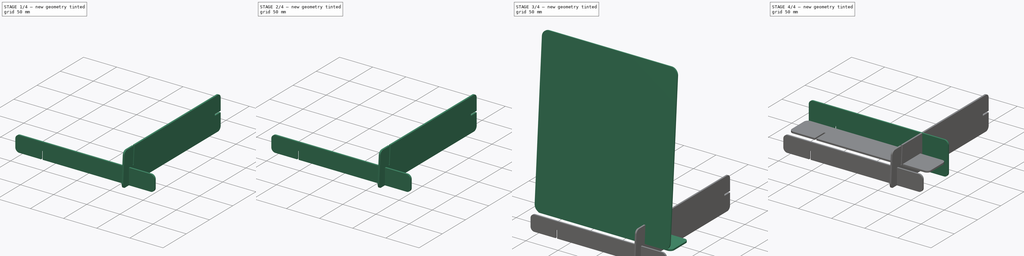
[diagram: build sequence overview — one tinted view per stage of 4, left to right]
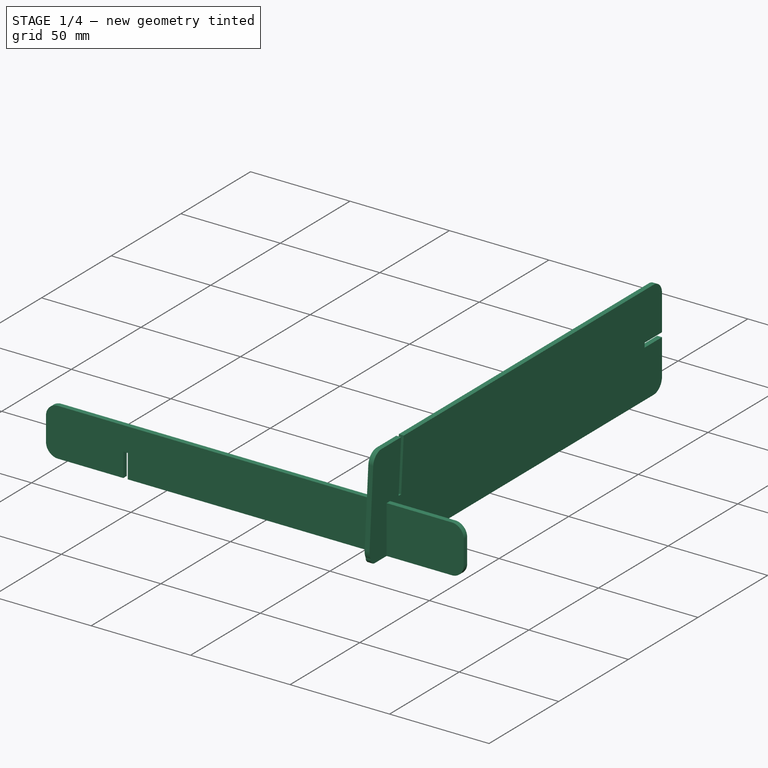
[diagram: stage 1 of 4 — iso view after this stage's code; geometry added in this stage tinted green]
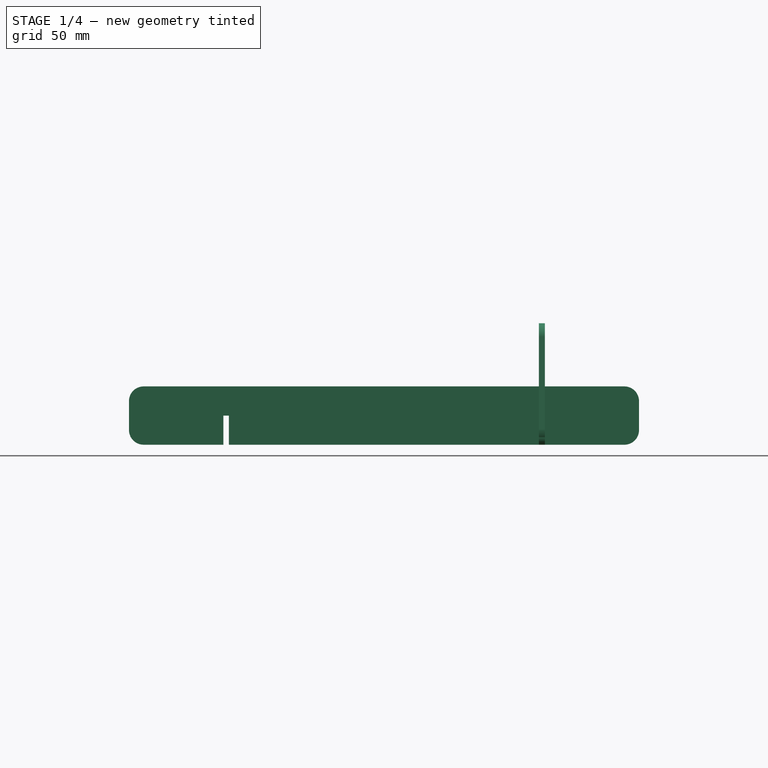
[diagram: stage 1 of 4 — front view after this stage's code; geometry added in this stage tinted green]
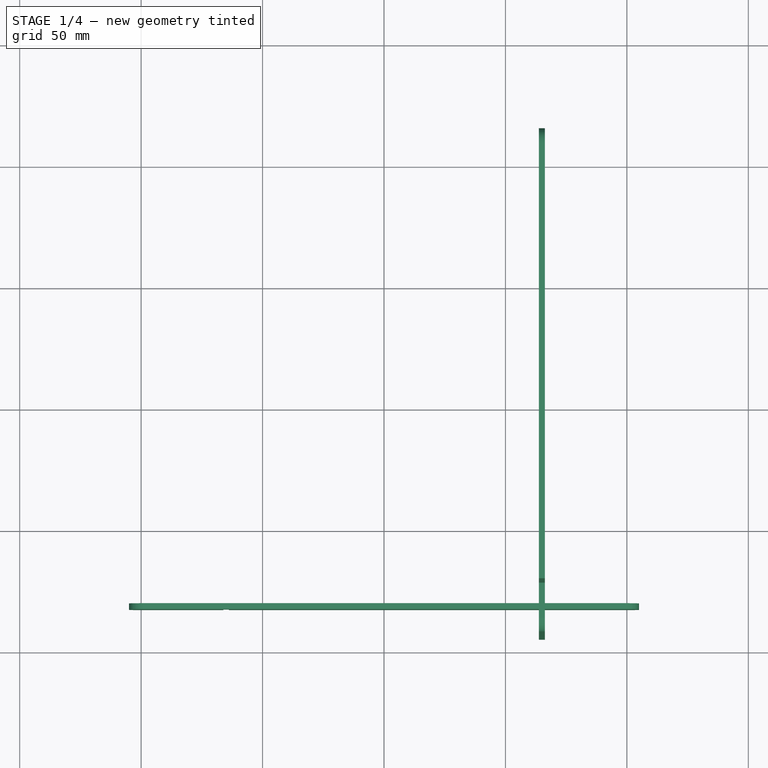
[diagram: stage 1 of 4 — top view after this stage's code; geometry added in this stage tinted green]
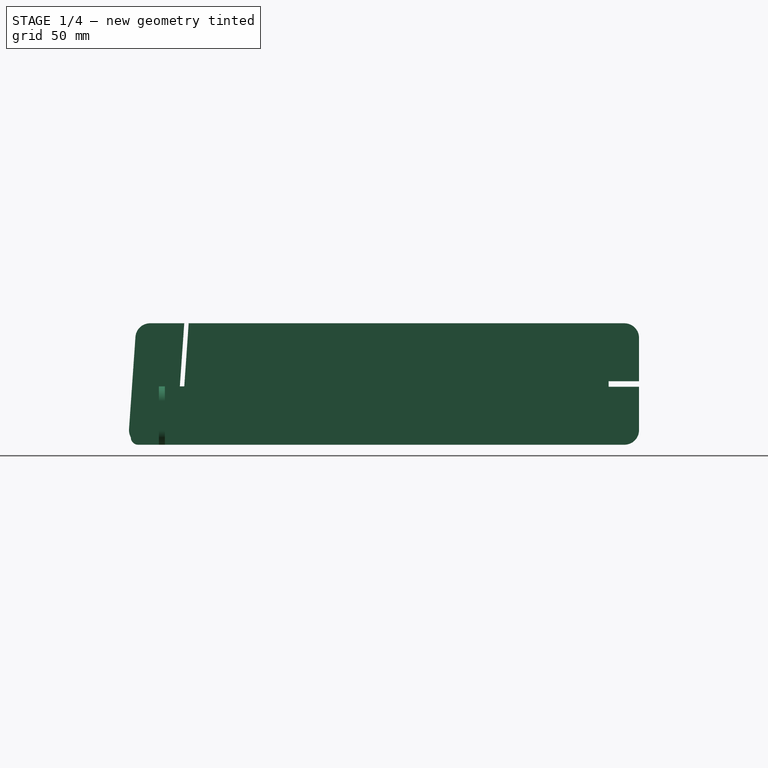
[diagram: stage 1 of 4 — right view after this stage's code; geometry added in this stage tinted green]
FCSTD DOCUMENT  (FreeCAD 1.0R39319 (Git))
Label: clock_face_v1
License: CERN Open Hardware Licence permissive
LicenseURL: https://cern-ohl.web.cern.ch/
objects: PartDesign::Body×14, Sketcher::SketchObject×11, PartDesign::Pad×9, PartDesign::SubShapeBinder×7, PartDesign::FeatureBase×5, PartDesign::Plane×1, App::VarSet×1
note: 81 computed .brp shape members not serialized (recipe doc carries the construction recipe); baked Part::Feature solids carry a one-line shape summary decoded from their .brp

FEATURE [PartDesign::Body] Body009
  AllowCompound = false
  Group = -> [Binder005,Binder006,Sketch009,Pad006]
  Origin = -> Origin009
  Tip = -> Pad006
FEATURE [App::VarSet] VarSet
  cardboard_thickness = 2.1
  laser_kerf = 0.2
  veneer_thickness = 2.45
FEATURE [Sketcher::SketchObject] Sketch010
  ArcFitTolerance = 1e-06
  AttachmentOffset = pos=(0,0,65) rot=(0,0,1;0rad)
  AttachmentSupport = -> [YZ_Plane010]
  FullyConstrained = true
  MakeInternals = false
  MapMode = 5
  Placement = pos=(65,0,0) rot=(0.57735,0.57735,0.57735;2.0944rad)
  expr: Constraints[11] = VarSet.veneer_thickness - VarSet.laser_kerf
  expr: Constraints[1] = VarSet.cardboard_thickness
  sketch-geometry (22):
    g0: LineSegment StartX=-19.9022 StartY=30 StartZ=0 EndX=-22 EndY=0 EndZ=0
    g1: LineSegment StartX=-22 StartY=0 StartZ=0 EndX=-24.1051 EndY=0 EndZ=0
    g2: LineSegment StartX=-24.1051 StartY=0 StartZ=0 EndX=-22.0073 EndY=30 EndZ=0
    g3: LineSegment StartX=-32.25 StartY=-7.5 StartZ=0 EndX=-32.25 EndY=-20 EndZ=0
    g4: LineSegment StartX=-30 StartY=-20 StartZ=0 EndX=-30 EndY=-7.5 EndZ=0
    g5: LineSegment StartX=-30 StartY=-7.5 StartZ=0 EndX=-32.25 EndY=-7.5 EndZ=0
    g6: LineSegment StartX=152.75 StartY=6.125 StartZ=0 EndX=152.75 EndY=3.875 EndZ=0
    g7: LineSegment StartX=152.75 StartY=3.875 StartZ=0 EndX=165.25 EndY=3.875 EndZ=0
    g8: LineSegment StartX=165.25 StartY=6.125 StartZ=0 EndX=152.75 EndY=6.125 EndZ=0
    g9: LineSegment StartX=-42.0928 StartY=24.4185 StartZ=0 EndX=-44.75 EndY=-13.5815 EndZ=0
    g10: LineSegment StartX=-38.7646 StartY=-20 StartZ=0 EndX=-32.25 EndY=-20 EndZ=0
    g11: LineSegment StartX=165.25 StartY=-14 StartZ=0 EndX=165.25 EndY=3.875 EndZ=0
    g12: LineSegment StartX=159.25 StartY=30 StartZ=0 EndX=-19.9022 EndY=30 EndZ=0
    g13: ArcOfCircle CenterX=-36.1074 CenterY=24 CenterZ=0 NormalX=0 NormalY=0 NormalZ=1 AngleXU=0 Radius=6 StartAngle=1.5708 EndAngle=3.07178
    g14: ArcOfCircle CenterX=-38.7646 CenterY=-14 CenterZ=0 NormalX=0 NormalY=0 NormalZ=1 AngleXU=0 Radius=6 StartAngle=3.07178 EndAngle=4.71239
    g15: ArcOfCircle CenterX=159.25 CenterY=-14 CenterZ=0 NormalX=0 NormalY=0 NormalZ=1 AngleXU=0 Radius=6 StartAngle=4.71239 EndAngle=6.28319
    g16: ArcOfCircle CenterX=159.25 CenterY=24 CenterZ=0 NormalX=0 NormalY=0 NormalZ=1 AngleXU=0 Radius=6 StartAngle=0 EndAngle=1.5708
    g17: GeomPoint [constr] X=-41.7025 Y=30 Z=0
    g18: GeomPoint [constr] X=165.25 Y=-20 Z=0
    g19: LineSegment StartX=-22.0073 StartY=30 StartZ=0 EndX=-36.1074 EndY=30 EndZ=0
    g20: LineSegment StartX=-30 StartY=-20 StartZ=0 EndX=159.25 EndY=-20 EndZ=0
    g21: LineSegment StartX=165.25 StartY=6.125 StartZ=0 EndX=165.25 EndY=24 EndZ=0
  constraints (63):
    c: Parallel(g2,g0)
    c: Distance(g0,g2) = 2.1
    c: Coincident(g1,g2)
    c: Equal(g2,g0)
    c: Horizontal(g1)
    c: Angle(g-1,g0) = 1.50098
    c: Coincident(g4,g5)
    c: Coincident(g5,g3)
    c: Vertical(g3)
    c: Vertical(g4)
    c: Horizontal(g5)
    c: Distance(g5,g5) = 2.25
    c: DistanceY(g3,g3) = 12.5
    c: Equal(g3,g4)
    c: Coincident(g6,g7)
    c: Coincident(g8,g6)
    c: Vertical(g6)
    c: Horizontal(g7)
    c: Horizontal(g8)
    c: Equal(g6,g5)
    c: DistanceX(g8,g8) = 12.5
    c: Equal(g8,g7)
    c: Coincident(g0,g1)
    c: Distance(g0,g-2) = 22
    c: Distance(g4,g-2) = 30
    c: Tangent(g9,g13) = -1.5708
    c: Tangent(g9,g14) = -1.5708
    c: Tangent(g10,g14) = -1.5708
    c: Tangent(g11,g15) = -1.5708
    c: Tangent(g12,g16) = -1.5708
    c: Vertical(g11)
    c: Horizontal(g10)
    c: Horizontal(g12)
    c: Equal(g13,g14)
    c: Equal(g14,g15)
    c: Equal(g15,g16)
    c: PointOnObject(g17,g9)
    c: PointOnObject(g17,g19)
    c: PointOnObject(g18,g20)
    c: PointOnObject(g18,g11)
    c: Radius(g14) = 6
    c: Distance(g19,g-1) = 30
    c: PointOnObject(g2,g19)
    c: PointOnObject(g19,g2)
    c: Horizontal(g19)
    c: Tangent(g13,g19) = -1.5708
    c: PointOnObject(g1,g-1)
    c: PointOnObject(g4,g20)
    c: PointOnObject(g20,g4)
    c: Tangent(g20,g15) = -1.5708
    c: Horizontal(g20)
    c: Coincident(g3,g10)
    c: DistanceX(g9,g3) = 12.5
    c: Parallel(g9,g2)
    c: PointOnObject(g8,g21)
    c: PointOnObject(g21,g8)
    c: Equal(g21,g11)
    c: Tangent(g21,g16) = -1.5708
    c: Vertical(g21)
    c: Coincident(g11,g7)
    c: Coincident(g12,g0)
    c: DistanceX(g9,g11) = 210
    c: DistanceY(g10,g13) = 50
FEATURE [PartDesign::Pad] Pad007
  Direction = (1,0,0)
  Length = 2.45
  Length2 = 10
  Midplane = true
  Placement = pos=(0,0,0) rot=(1,1,1;2.0944rad)
  Profile = -> Sketch010
  ReferenceAxis = -> Sketch010 [N_Axis]
  Refine = true
  Suppressed = false
  Type = 0
  expr: Length = VarSet.veneer_thickness
FEATURE [PartDesign::Body] Body011
  AllowCompound = false
  Group = -> [Clone003]
  Origin = -> Origin011
  Placement = pos=(-130,0,0) rot=(0,0,1;0rad)
  Tip = -> Clone003
FEATURE [Sketcher::SketchObject] Sketch011
  ArcFitTolerance = 1e-06
  AttachmentOffset = pos=(0,0,65) rot=(0,0,1;0rad)
  AttachmentSupport = -> [YZ_Plane012]
  FullyConstrained = true
  MakeInternals = false
  MapMode = 5
  Placement = pos=(65,0,0) rot=(0.57735,0.57735,0.57735;2.0944rad)
  expr: Constraints[10] = VarSet.cardboard_thickness
  expr: Constraints[29] = VarSet.veneer_thickness - VarSet.laser_kerf
  sketch-geometry (20):
    g0: LineSegment StartX=12 StartY=30 StartZ=0 EndX=-20.1819 EndY=30 EndZ=0
    g1: LineSegment StartX=-20.1819 StartY=30 StartZ=0 EndX=-22 EndY=4 EndZ=0
    g2: LineSegment StartX=-22 StartY=4 StartZ=0 EndX=-24.1051 EndY=4 EndZ=0
    g3: LineSegment StartX=-24.1051 StartY=4 StartZ=0 EndX=-22.287 EndY=30 EndZ=0
    g4: LineSegment StartX=-22.287 StartY=30 StartZ=0 EndX=-35.133 EndY=30 EndZ=0
    g5: ArcOfCircle CenterX=-35.133 CenterY=24 CenterZ=0 NormalX=0 NormalY=0 NormalZ=1 AngleXU=0 Radius=6 StartAngle=1.5708 EndAngle=3.07178
    g6: LineSegment StartX=-44 StartY=-16.7907 StartZ=0 EndX=-41.1184 EndY=24.4185 EndZ=0
    g7: ArcOfCircle CenterX=-41.0073 CenterY=-17 CenterZ=0 NormalX=0 NormalY=0 NormalZ=1 AngleXU=0 Radius=3 StartAngle=3.07178 EndAngle=4.71239
    g8: LineSegment StartX=-41.0073 StartY=-20 StartZ=0 EndX=-32.25 EndY=-20 EndZ=0
    g9: ArcOfCircle CenterX=15 CenterY=-17 CenterZ=0 NormalX=0 NormalY=0 NormalZ=1 AngleXU=0 Radius=3 StartAngle=4.71239 EndAngle=6.28319
    g10: LineSegment StartX=18 StartY=24 StartZ=0 EndX=18 EndY=4 EndZ=0
    g11: ArcOfCircle CenterX=12 CenterY=24 CenterZ=0 NormalX=0 NormalY=0 NormalZ=1 AngleXU=0 Radius=6 StartAngle=0 EndAngle=1.5708
    g12: LineSegment StartX=-32.25 StartY=-8 StartZ=0 EndX=-32.25 EndY=-20 EndZ=0
    g13: LineSegment StartX=-30 StartY=-20 StartZ=0 EndX=-30 EndY=-8 EndZ=0
    g14: LineSegment StartX=-30 StartY=-8 StartZ=0 EndX=-32.25 EndY=-8 EndZ=0
    g15: LineSegment StartX=-30 StartY=-20 StartZ=0 EndX=15 EndY=-20 EndZ=0
    g16: LineSegment StartX=4.9987e-12 StartY=4 StartZ=0 EndX=4.9987e-12 EndY=1.75 EndZ=0
    g17: LineSegment StartX=4.9987e-12 StartY=1.75 StartZ=0 EndX=18 EndY=1.75 EndZ=0
    g18: LineSegment StartX=18 StartY=4 StartZ=0 EndX=4.9987e-12 EndY=4 EndZ=0
    g19: LineSegment StartX=18 StartY=1.75 StartZ=0 EndX=18 EndY=-17 EndZ=0
  constraints (58):
    c: Horizontal(g8)
    c: Vertical(g10)
    c: Horizontal(g0)
    c: Horizontal(g4)
    c: Equal(g7,g9)
    c: Equal(g5,g11)
    c: Radius(g5) = 6
    c: Radius(g7) = 3
    c: DistanceY(g15,g11) = 50
    c: Parallel(g3,g1)
    c: Distance(g1,g3) = 2.1
    c: Coincident(g0,g1)
    c: Coincident(g3,g4)
    c: Coincident(g2,g3)
    c: Tangent(g10,g11) = 1.5708
    c: Tangent(g4,g5) = -1.5708
    c: Tangent(g5,g6) = 1.5708
    c: Tangent(g7,g8) = -1.5708
    c: Equal(g3,g1)
    c: Horizontal(g2)
    c: Angle(g-1,g1) = 1.50098
    c: Parallel(g6,g3)
    c: Tangent(g6,g7) = 1.5708
    c: Coincident(g13,g14)
    c: Coincident(g14,g12)
    c: Vertical(g12)
    c: Vertical(g13)
    c: Horizontal(g14)
    c: PointOnObject(g13,g15)
    c: Distance(g14,g14) = 2.25
    c: DistanceY(g12,g12) = 12
    c: Coincident(g8,g12)
    c: PointOnObject(g15,g13)
    c: Equal(g12,g13)
    c: Horizontal(g15)
    c: Tangent(g15,g9) = -1.5708
    c: Tangent(g0,g11) = -1.5708
    c: Distance(g9,g-2) = 18
    c: Coincident(g16,g17)
    c: Coincident(g18,g16)
    c: Vertical(g16)
    c: Horizontal(g17)
    c: Horizontal(g18)
    c: PointOnObject(g17,g19)
    c: Equal(g16,g14)
    c: DistanceX(g18,g18) = 18
    c: Coincident(g10,g18)
    c: PointOnObject(g19,g17)
    c: Tangent(g9,g19) = 1.5708
    c: Vertical(g19)
    c: Equal(g18,g17)
    c: Coincident(g1,g2)
    c: DistanceX(g6,g9) = 62
    c: DistanceY(g-1,g4) = 30
    c: Distance(g2,g14) = 12
    c: Distance(g1,g-2) = 22
    c: Distance(g13,g-2) = 30
    c: Horizontal(g16,g1)
FEATURE [PartDesign::Pad] Pad008
  Direction = (1,0,0)
  Length = 2.45
  Length2 = 10
  Midplane = true
  Placement = pos=(0,0,0) rot=(1,1,1;2.0944rad)
  Profile = -> Sketch011
  ReferenceAxis = -> Sketch011 [N_Axis]
  Refine = true
  Suppressed = false
  Type = 0
  expr: Length = VarSet.veneer_thickness
FEATURE [PartDesign::Body] Body012
  AllowCompound = false
  Group = -> [Sketch011,Pad008]
  Origin = -> Origin012
  Tip = -> Pad008
FEATURE [PartDesign::FeatureBase] Clone004
  BaseFeature = -> Body012
  Suppressed = false
FEATURE [PartDesign::Body] Body013
  AllowCompound = false
  Group = -> [Clone004]
  Origin = -> Origin013
  Placement = pos=(-130,0,0) rot=(0,0,1;0rad)
  Tip = -> Clone004
FEATURE [Sketcher::SketchObject] Sketch012
  ArcFitTolerance = 1e-06
  FullyConstrained = true
  MakeInternals = false
  MapMode = 5
  Placement = pos=(-6.6e-15,-30,3.3e-15) rot=(1,0,0;1.5708rad)
  expr: Constraints[53] = VarSet.veneer_thickness - VarSet.laser_kerf
  sketch-geometry (22):
    g0: LineSegment StartX=-66.125 StartY=-20 StartZ=0 EndX=-66.125 EndY=-8 EndZ=0
    g1: LineSegment StartX=-66.125 StartY=-8 StartZ=0 EndX=-63.875 EndY=-8 EndZ=0
    g2: LineSegment StartX=-63.875 StartY=-8 StartZ=0 EndX=-63.875 EndY=-20 EndZ=0
    g3: LineSegment StartX=-63.875 StartY=-20 StartZ=0 EndX=63.875 EndY=-20 EndZ=0
    g4: LineSegment StartX=63.875 StartY=-20 StartZ=0 EndX=63.875 EndY=-8 EndZ=0
    g5: LineSegment StartX=63.875 StartY=-8 StartZ=0 EndX=66.125 EndY=-8 EndZ=0
    g6: LineSegment StartX=66.125 StartY=-8 StartZ=0 EndX=66.125 EndY=-20 EndZ=0
    g7: LineSegment StartX=66.125 StartY=-20 StartZ=0 EndX=99 EndY=-20 EndZ=0
    g8: LineSegment StartX=105 StartY=-14 StartZ=0 EndX=105 EndY=-2 EndZ=0
    g9: LineSegment StartX=99 StartY=4 StartZ=0 EndX=-99 EndY=4 EndZ=0
    g10: LineSegment StartX=-105 StartY=-2 StartZ=0 EndX=-105 EndY=-14 EndZ=0
    g11: LineSegment StartX=-99 StartY=-20 StartZ=0 EndX=-66.125 EndY=-20 EndZ=0
    g12: ArcOfCircle CenterX=-99 CenterY=-2 CenterZ=0 NormalX=0 NormalY=0 NormalZ=1 AngleXU=0 Radius=6 StartAngle=1.5708 EndAngle=3.14159
    g13: GeomPoint [constr] X=-105 Y=4 Z=0
    g14: ArcOfCircle CenterX=-99 CenterY=-14 CenterZ=0 NormalX=0 NormalY=0 NormalZ=1 AngleXU=0 Radius=6 StartAngle=3.14159 EndAngle=4.71239
    g15: GeomPoint [constr] X=-105 Y=-20 Z=0
    g16: ArcOfCircle CenterX=99 CenterY=-14 CenterZ=0 NormalX=0 NormalY=0 NormalZ=1 AngleXU=0 Radius=6 StartAngle=4.71239 EndAngle=6.28319
    g17: GeomPoint [constr] X=105 Y=-20 Z=0
    g18: ArcOfCircle CenterX=99 CenterY=-2 CenterZ=0 NormalX=0 NormalY=0 NormalZ=1 AngleXU=0 Radius=6 StartAngle=0 EndAngle=1.5708
    g19: GeomPoint [constr] X=105 Y=4 Z=0
    g20: LineSegment [constr] StartX=63.875 StartY=-14 StartZ=0 EndX=66.125 EndY=-14 EndZ=0
    g21: LineSegment [constr] StartX=65 StartY=-14 StartZ=0 EndX=65 EndY=-8 EndZ=0
  constraints (54):
    c: Vertical(g0)
    c: Coincident(g0,g1)
    c: Horizontal(g1)
    c: Coincident(g1,g2)
    c: Vertical(g2)
    c: Coincident(g2,g3)
    c: Vertical(g4)
    c: Coincident(g4,g5)
    c: Vertical(g6)
    c: Coincident(g6,g7)
    c: Horizontal(g7)
    c: Horizontal(g9)
    c: Vertical(g10)
    c: Coincident(g11,g0)
    c: Horizontal(g11)
    c: Horizontal(g5)
    c: Vertical(g8)
    c: Equal(g0,g2)
    c: Equal(g2,g4)
    c: Equal(g4,g6)
    c: Equal(g1,g5)
    c: Symmetric(g2,g3,g-2)
    c: DistanceX(g13,g19) = 210
    c: DistanceY(g15,g13) = 24
    c: PointOnObject(g13,g9)
    c: PointOnObject(g13,g10)
    c: Tangent(g9,g12) = -1.5708
    c: Tangent(g10,g12) = -1.5708
    c: PointOnObject(g15,g10)
    c: PointOnObject(g15,g11)
    c: Tangent(g10,g14) = -1.5708
    c: Tangent(g11,g14) = -1.5708
    c: PointOnObject(g17,g8)
    c: PointOnObject(g17,g7)
    c: Tangent(g8,g16) = -1.5708
    c: Tangent(g7,g16) = -1.5708
    c: PointOnObject(g19,g9)
    c: PointOnObject(g19,g8)
    c: Tangent(g9,g18) = -1.5708
    c: Tangent(g8,g18) = -1.5708
    c: Equal(g18,g16)
    c: Equal(g16,g14)
    c: Equal(g14,g12)
    c: Radius(g12) = 6
    c: Equal(g11,g7)
    c: Coincident(g5,g6)
    c: Coincident(g3,g4)
    c: PointOnObject(g0,g-4)
    c: Symmetric(g4,g4,g20)
    c: Symmetric(g6,g6,g20)
    c: Symmetric(g20,g20,g21)
    c: Symmetric(g5,g5,g21)
    c: Symmetric(g-5,g-5,g21)
    c: DistanceX(g20,g20) = 2.25
FEATURE [PartDesign::Pad] Pad009
  Direction = (0,-1,2e-16)
  Length = 2.45
  Length2 = 10
  Placement = pos=(-6.6e-15,-30,3.3e-15) rot=(1,0,0;1.5708rad)
  Profile = -> Sketch012
  ReferenceAxis = -> Sketch012 [N_Axis]
  Refine = true
  Suppressed = false
  Type = 0
  expr: Length = VarSet.veneer_thickness
FEATURE [PartDesign::Body] Body014
  AllowCompound = false
  Group = -> [Sketch012,Pad009]
  Origin = -> Origin014
  Tip = -> Pad009
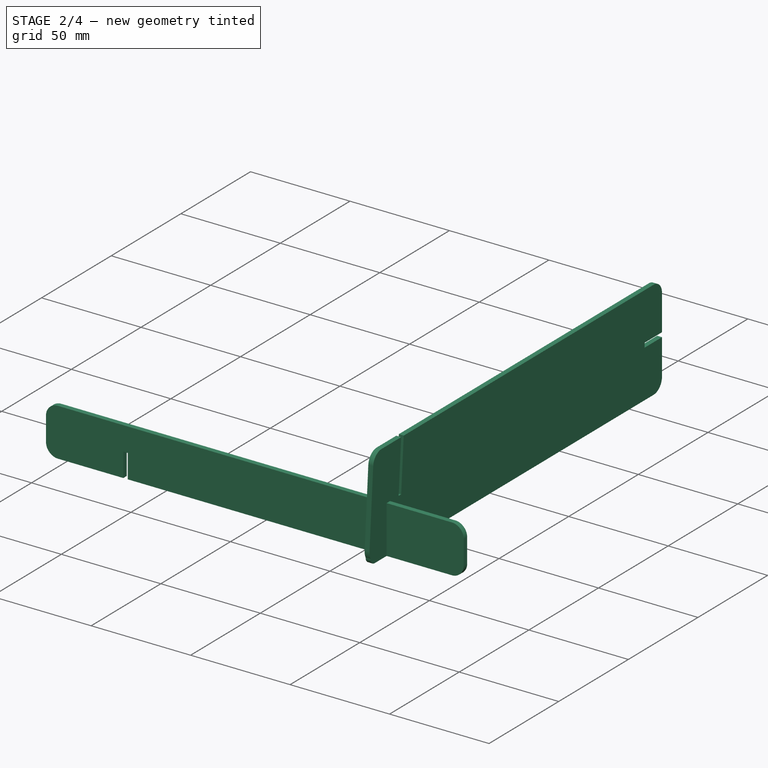
[diagram: stage 2 of 4 — iso view after this stage's code; geometry added in this stage tinted green]
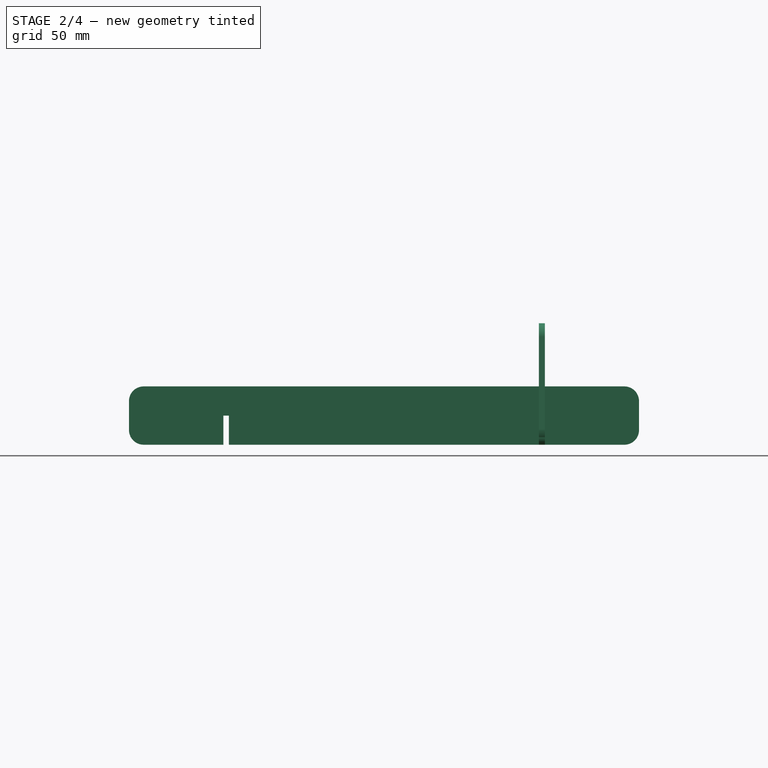
[diagram: stage 2 of 4 — front view after this stage's code; geometry added in this stage tinted green]
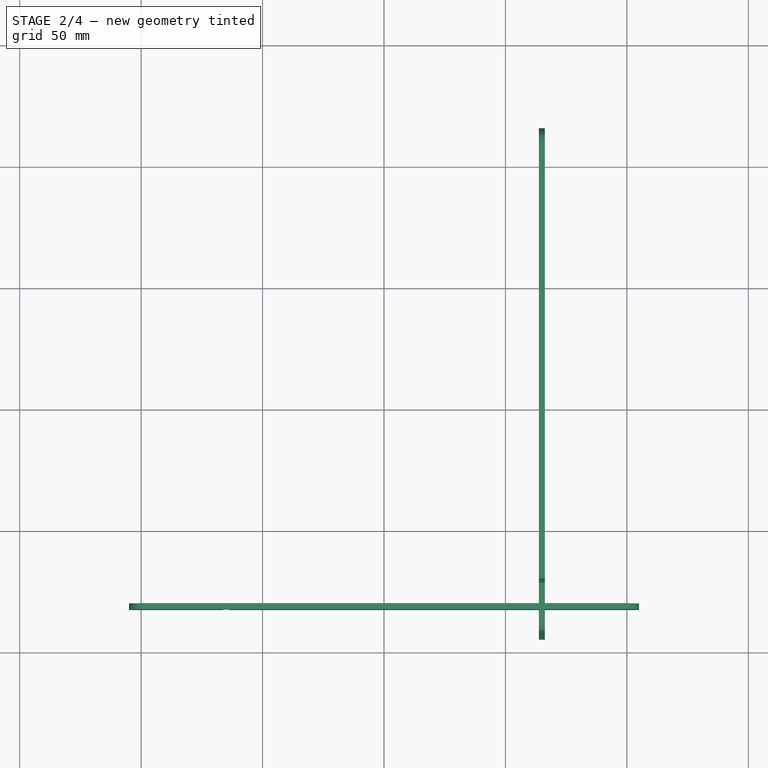
[diagram: stage 2 of 4 — top view after this stage's code; geometry added in this stage tinted green]
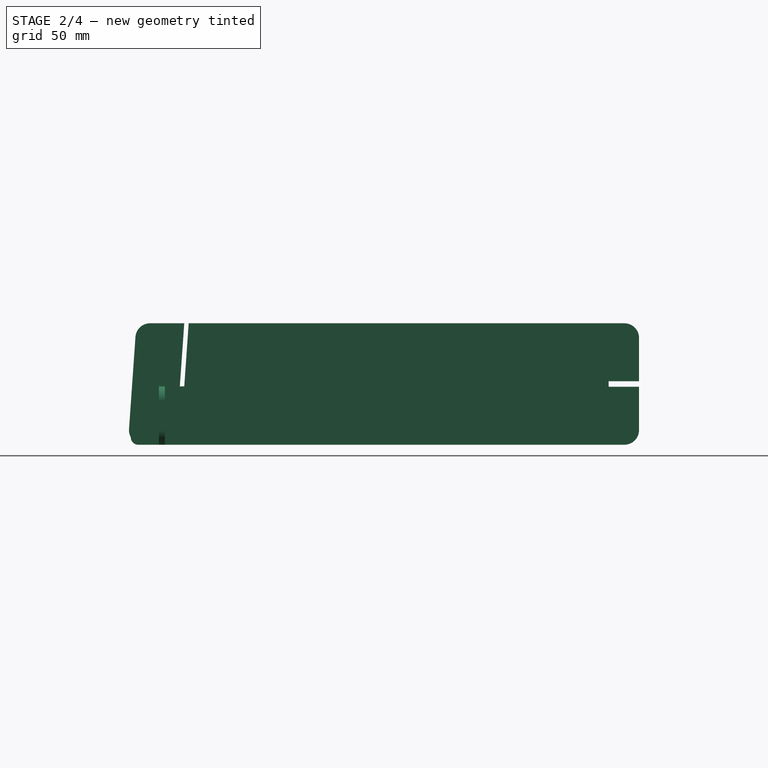
[diagram: stage 2 of 4 — right view after this stage's code; geometry added in this stage tinted green]
FEATURE [PartDesign::Body] Body004
  AllowCompound = false
  Group = -> [Clone001]
  Origin = -> Origin004
  Placement = pos=(0,1.9,-33.1) rot=(1,0,0;1.5708rad)
  Tip = -> Clone001
FEATURE [Sketcher::SketchObject] Sketch007
  ArcFitTolerance = 1e-06
  AttachmentOffset = pos=(0,0,65) rot=(0,0,1;0rad)
  AttachmentSupport = -> [YZ_Plane006]
  FullyConstrained = true
  MakeInternals = false
  MapMode = 5
  Placement = pos=(65,0,0) rot=(0.57735,0.57735,0.57735;2.0944rad)
  expr: Constraints[10] = VarSet.cardboard_thickness
  expr: Constraints[29] = VarSet.veneer_thickness - VarSet.laser_kerf
  sketch-geometry (20):
    g0: LineSegment StartX=12 StartY=30 StartZ=0 EndX=-20.1819 EndY=30 EndZ=0
    g1: LineSegment StartX=-20.1819 StartY=30 StartZ=0 EndX=-22 EndY=4 EndZ=0
    g2: LineSegment StartX=-22 StartY=4 StartZ=0 EndX=-24.1051 EndY=4 EndZ=0
    g3: LineSegment StartX=-24.1051 StartY=4 StartZ=0 EndX=-22.287 EndY=30 EndZ=0
    g4: LineSegment StartX=-22.287 StartY=30 StartZ=0 EndX=-35.133 EndY=30 EndZ=0
    g5: ArcOfCircle CenterX=-35.133 CenterY=24 CenterZ=0 NormalX=0 NormalY=0 NormalZ=1 AngleXU=0 Radius=6 StartAngle=1.5708 EndAngle=3.07178
    g6: LineSegment StartX=-44 StartY=-16.7907 StartZ=0 EndX=-41.1184 EndY=24.4185 EndZ=0
    g7: ArcOfCircle CenterX=-41.0073 CenterY=-17 CenterZ=0 NormalX=0 NormalY=0 NormalZ=1 AngleXU=0 Radius=3 StartAngle=3.07178 EndAngle=4.71239
    g8: LineSegment StartX=-41.0073 StartY=-20 StartZ=0 EndX=-32.25 EndY=-20 EndZ=0
    g9: ArcOfCircle CenterX=15 CenterY=-17 CenterZ=0 NormalX=0 NormalY=0 NormalZ=1 AngleXU=0 Radius=3 StartAngle=4.71239 EndAngle=6.28319
    g10: LineSegment StartX=18 StartY=24 StartZ=0 EndX=18 EndY=4 EndZ=0
    g11: ArcOfCircle CenterX=12 CenterY=24 CenterZ=0 NormalX=0 NormalY=0 NormalZ=1 AngleXU=0 Radius=6 StartAngle=0 EndAngle=1.5708
    g12: LineSegment StartX=-32.25 StartY=-8 StartZ=0 EndX=-32.25 EndY=-20 EndZ=0
    g13: LineSegment StartX=-30 StartY=-20 StartZ=0 EndX=-30 EndY=-8 EndZ=0
    g14: LineSegment StartX=-30 StartY=-8 StartZ=0 EndX=-32.25 EndY=-8 EndZ=0
    g15: LineSegment StartX=-30 StartY=-20 StartZ=0 EndX=15 EndY=-20 EndZ=0
    g16: LineSegment StartX=4.9987e-12 StartY=4 StartZ=0 EndX=4.9987e-12 EndY=1.75 EndZ=0
    g17: LineSegment StartX=4.9987e-12 StartY=1.75 StartZ=0 EndX=18 EndY=1.75 EndZ=0
    g18: LineSegment StartX=18 StartY=4 StartZ=0 EndX=4.9987e-12 EndY=4 EndZ=0
    g19: LineSegment StartX=18 StartY=1.75 StartZ=0 EndX=18 EndY=-17 EndZ=0
  constraints (58):
    c: Horizontal(g8)
    c: Vertical(g10)
    c: Horizontal(g0)
    c: Horizontal(g4)
    c: Equal(g7,g9)
    c: Equal(g5,g11)
    c: Radius(g5) = 6
    c: Radius(g7) = 3
    c: DistanceY(g15,g11) = 50
    c: Parallel(g3,g1)
    c: Distance(g1,g3) = 2.1
    c: Coincident(g0,g1)
    c: Coincident(g3,g4)
    c: Coincident(g2,g3)
    c: Tangent(g10,g11) = 1.5708
    c: Tangent(g4,g5) = -1.5708
    c: Tangent(g5,g6) = 1.5708
    c: Tangent(g7,g8) = -1.5708
    c: Equal(g3,g1)
    c: Horizontal(g2)
    c: Angle(g-1,g1) = 1.50098
    c: Parallel(g6,g3)
    c: Tangent(g6,g7) = 1.5708
    c: Coincident(g13,g14)
    c: Coincident(g14,g12)
    c: Vertical(g12)
    c: Vertical(g13)
    c: Horizontal(g14)
    c: PointOnObject(g13,g15)
    c: Distance(g14,g14) = 2.25
    c: DistanceY(g12,g12) = 12
    c: Coincident(g8,g12)
    c: PointOnObject(g15,g13)
    c: Equal(g12,g13)
    c: Horizontal(g15)
    c: Tangent(g15,g9) = -1.5708
    c: Tangent(g0,g11) = -1.5708
    c: Distance(g9,g-2) = 18
    c: Coincident(g16,g17)
    c: Coincident(g18,g16)
    c: Vertical(g16)
    c: Horizontal(g17)
    c: Horizontal(g18)
    c: PointOnObject(g17,g19)
    c: Equal(g16,g14)
    c: DistanceX(g18,g18) = 18
    c: Coincident(g10,g18)
    c: PointOnObject(g19,g17)
    c: Tangent(g9,g19) = 1.5708
    c: Vertical(g19)
    c: Equal(g18,g17)
    c: Coincident(g1,g2)
    c: DistanceX(g6,g9) = 62
    c: DistanceY(g-1,g4) = 30
    c: Distance(g2,g14) = 12
    c: Distance(g1,g-2) = 22
    c: Distance(g13,g-2) = 30
    c: Horizontal(g16,g1)
FEATURE [PartDesign::Pad] Pad004
  Direction = (1,0,0)
  Length = 2.45
  Length2 = 10
  Midplane = true
  Placement = pos=(0,0,0) rot=(1,1,1;2.0944rad)
  Profile = -> Sketch007
  ReferenceAxis = -> Sketch007 [N_Axis]
  Refine = true
  Suppressed = false
  Type = 0
  expr: Length = VarSet.veneer_thickness
FEATURE [PartDesign::Body] Body006
  AllowCompound = false
  Group = -> [Sketch007,Pad004]
  Origin = -> Origin006
  Tip = -> Pad004
FEATURE [PartDesign::FeatureBase] Clone002
  BaseFeature = -> Body006
  Suppressed = false
FEATURE [PartDesign::Body] Body010
  AllowCompound = false
  Group = -> [Sketch010,Pad007]
  Origin = -> Origin010
  Tip = -> Pad007
FEATURE [PartDesign::FeatureBase] Clone003
  BaseFeature = -> Body010
  Suppressed = false
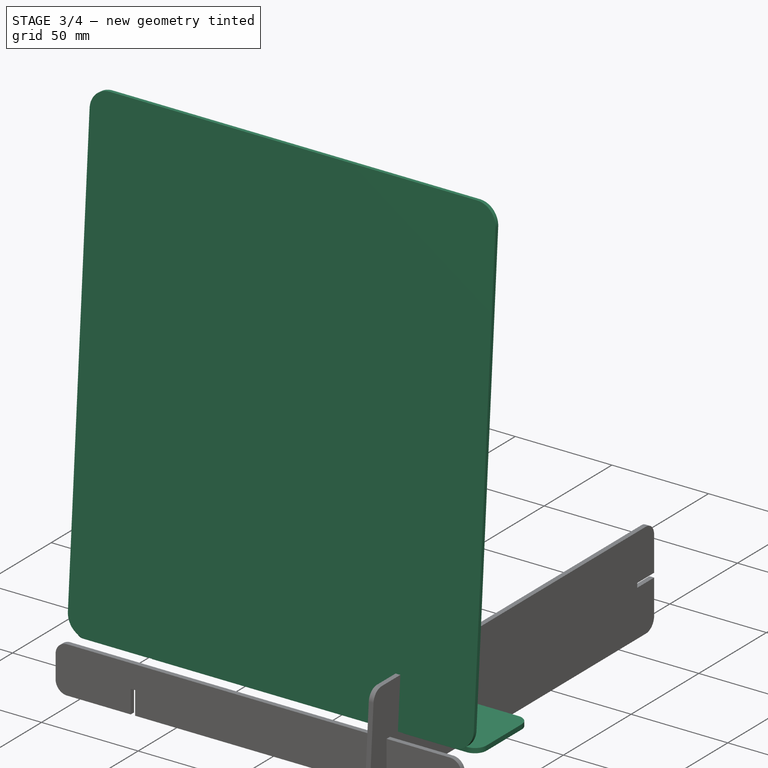
[diagram: stage 3 of 4 — iso view after this stage's code; geometry added in this stage tinted green]
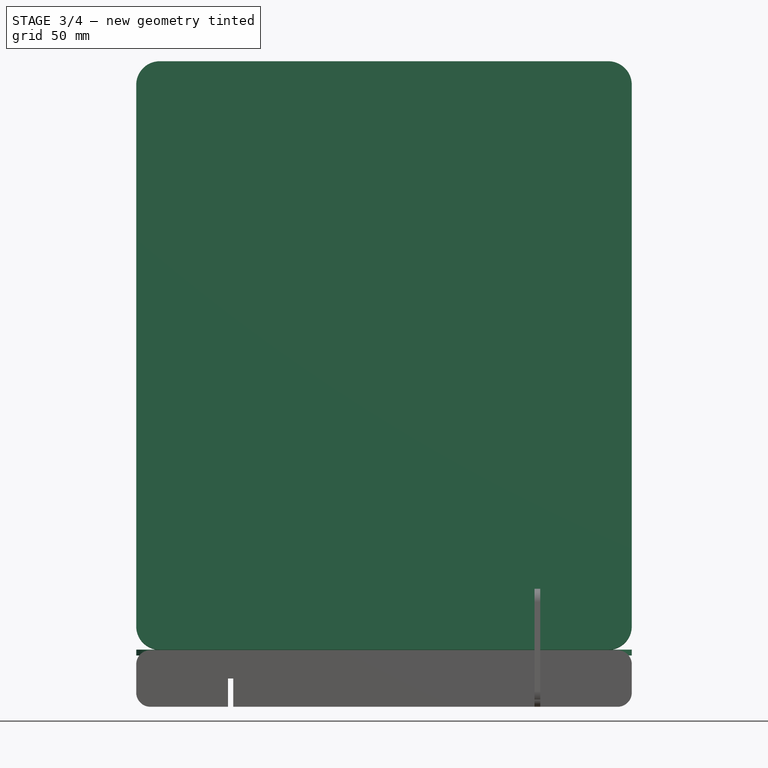
[diagram: stage 3 of 4 — front view after this stage's code; geometry added in this stage tinted green]
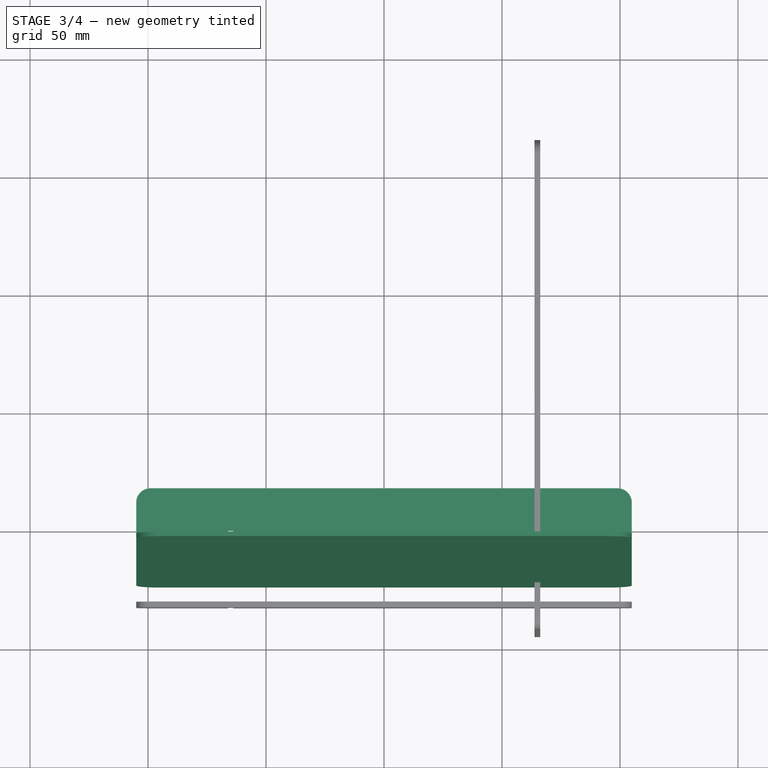
[diagram: stage 3 of 4 — top view after this stage's code; geometry added in this stage tinted green]
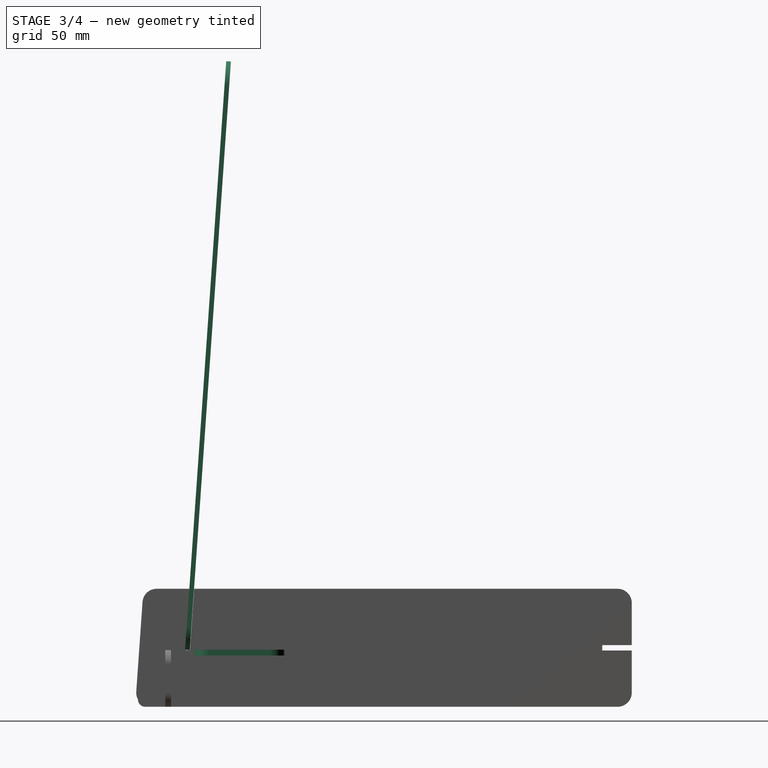
[diagram: stage 3 of 4 — right view after this stage's code; geometry added in this stage tinted green]
FEATURE [PartDesign::Plane] DatumPlane
  AttachmentOffset = pos=(0,0,0) rot=(-1,0,0;0.069813rad)
  AttachmentSupport = -> [XZ_Plane]
  Length = 258.618
  MapMode = 5
  Placement = pos=(0,0,0) rot=(1,0,0;1.50098rad)
  ResizeMode = 0
  Width = 330.007
FEATURE [Sketcher::SketchObject] Sketch
  ArcFitTolerance = 1e-06
  AttachmentOffset = pos=(0,2.5,22.3) rot=(0,0,1;0rad)
  AttachmentSupport = -> [DatumPlane]
  FullyConstrained = true
  MakeInternals = false
  MapMode = 5
  Placement = pos=(0,-22.0713,4.04948) rot=(1,0,0;1.50098rad)
  sketch-geometry (8):
    g0: LineSegment StartX=-95 StartY=0 StartZ=0 EndX=95 EndY=0 EndZ=0
    g1: LineSegment StartX=105 StartY=10 StartZ=0 EndX=105 EndY=240 EndZ=0
    g2: LineSegment StartX=95 StartY=250 StartZ=0 EndX=-95 EndY=250 EndZ=0
    g3: LineSegment StartX=-105 StartY=240 StartZ=0 EndX=-105 EndY=10 EndZ=0
    g4: ArcOfCircle CenterX=-95 CenterY=240 CenterZ=0 NormalX=0 NormalY=0 NormalZ=1 AngleXU=0 Radius=10 StartAngle=1.5708 EndAngle=3.14159
    g5: ArcOfCircle CenterX=95 CenterY=240 CenterZ=0 NormalX=0 NormalY=0 NormalZ=1 AngleXU=0 Radius=10 StartAngle=1.2e-15 EndAngle=1.5708
    g6: ArcOfCircle CenterX=95 CenterY=10 CenterZ=0 NormalX=0 NormalY=0 NormalZ=1 AngleXU=0 Radius=10 StartAngle=4.71239 EndAngle=6.28319
    g7: ArcOfCircle CenterX=-95 CenterY=10 CenterZ=0 NormalX=0 NormalY=0 NormalZ=1 AngleXU=0 Radius=10 StartAngle=3.14159 EndAngle=4.71239
  constraints (19):
    c: Horizontal(g0)
    c: Vertical(g1)
    c: Horizontal(g2)
    c: Vertical(g3)
    c: Tangent(g2,g4) = -1.5708
    c: Tangent(g3,g4) = -1.5708
    c: Tangent(g2,g5) = -1.5708
    c: Tangent(g1,g5) = -1.5708
    c: Tangent(g1,g6) = -1.5708
    c: Tangent(g0,g6) = -1.5708
    c: Tangent(g0,g7) = -1.5708
    c: Tangent(g3,g7) = -1.5708
    c: Equal(g7,g6)
    c: Equal(g6,g5)
    c: Equal(g5,g4)
    c: Radius(g4) = 10
    c: DistanceX(g3,g1) = 210
    c: DistanceY(g0,g2) = 250
    c: Symmetric(g0,g0,g-1)
FEATURE [PartDesign::Pad] Pad
  Direction = (0,-0.997564,0.0697565)
  Length = 2
  Length2 = 10
  Placement = pos=(0,0,0) rot=(1,0,0;1.50098rad)
  Profile = -> Sketch
  ReferenceAxis = -> Sketch [N_Axis]
  Refine = true
  Suppressed = false
  Type = 0
FEATURE [PartDesign::Body] Body007
  AllowCompound = false
  Group = -> [Clone002]
  Origin = -> Origin007
  Placement = pos=(-130,0,0) rot=(0,0,1;0rad)
  Tip = -> Clone002
FEATURE [PartDesign::SubShapeBinder] Binder003
  BindCopyOnChange = 0
  BindMode = 0
  ClaimChildren = false
  Context = -> Body008 [Binder003.]
  Fuse = false
  MakeFace = true
  OffsetFill = false
  OffsetIntersection = false
  OffsetJoinType = 0
  OffsetOpenResult = false
  PartialLoad = false
  Refine = true
  Relative = true
  Support = -> [Body006]
  _Version = 2
FEATURE [PartDesign::SubShapeBinder] Binder004
  BindCopyOnChange = 0
  BindMode = 0
  ClaimChildren = false
  Context = -> Body008 [Binder004.]
  Fuse = false
  MakeFace = true
  OffsetFill = false
  OffsetIntersection = false
  OffsetJoinType = 0
  OffsetOpenResult = false
  PartialLoad = false
  Refine = true
  Relative = true
  Support = -> [Body007]
  _Version = 2
FEATURE [Sketcher::SketchObject] Sketch008
  ArcFitTolerance = 1e-06
  AttachmentSupport = -> [Binder003]
  ExternalGeometry = -> [Binder004,Binder003]
  FullyConstrained = true
  MakeInternals = false
  MapMode = 5
  Placement = pos=(-6.7e-15,-30,3.3e-15) rot=(1,0,0;1.5708rad)
  expr: Constraints[53] = VarSet.veneer_thickness - VarSet.laser_kerf
  sketch-geometry (22):
    g0: LineSegment StartX=-66.125 StartY=-20 StartZ=0 EndX=-66.125 EndY=-8 EndZ=0
    g1: LineSegment StartX=-66.125 StartY=-8 StartZ=0 EndX=-63.875 EndY=-8 EndZ=0
    g2: LineSegment StartX=-63.875 StartY=-8 StartZ=0 EndX=-63.875 EndY=-20 EndZ=0
    g3: LineSegment StartX=-63.875 StartY=-20 StartZ=0 EndX=63.875 EndY=-20 EndZ=0
    g4: LineSegment StartX=63.875 StartY=-20 StartZ=0 EndX=63.875 EndY=-8 EndZ=0
    g5: LineSegment StartX=63.875 StartY=-8 StartZ=0 EndX=66.125 EndY=-8 EndZ=0
    g6: LineSegment StartX=66.125 StartY=-8 StartZ=0 EndX=66.125 EndY=-20 EndZ=0
    g7: LineSegment StartX=66.125 StartY=-20 StartZ=0 EndX=99 EndY=-20 EndZ=0
    g8: LineSegment StartX=105 StartY=-14 StartZ=0 EndX=105 EndY=-2 EndZ=0
    g9: LineSegment StartX=99 StartY=4 StartZ=0 EndX=-99 EndY=4 EndZ=0
    g10: LineSegment StartX=-105 StartY=-2 StartZ=0 EndX=-105 EndY=-14 EndZ=0
    g11: LineSegment StartX=-99 StartY=-20 StartZ=0 EndX=-66.125 EndY=-20 EndZ=0
    g12: ArcOfCircle CenterX=-99 CenterY=-2 CenterZ=0 NormalX=0 NormalY=0 NormalZ=1 AngleXU=0 Radius=6 StartAngle=1.5708 EndAngle=3.14159
    g13: GeomPoint [constr] X=-105 Y=4 Z=0
    g14: ArcOfCircle CenterX=-99 CenterY=-14 CenterZ=0 NormalX=0 NormalY=0 NormalZ=1 AngleXU=0 Radius=6 StartAngle=3.14159 EndAngle=4.71239
    g15: GeomPoint [constr] X=-105 Y=-20 Z=0
    g16: ArcOfCircle CenterX=99 CenterY=-14 CenterZ=0 NormalX=0 NormalY=0 NormalZ=1 AngleXU=0 Radius=6 StartAngle=4.71239 EndAngle=6.28319
    g17: GeomPoint [constr] X=105 Y=-20 Z=0
    g18: ArcOfCircle CenterX=99 CenterY=-2 CenterZ=0 NormalX=0 NormalY=0 NormalZ=1 AngleXU=0 Radius=6 StartAngle=0 EndAngle=1.5708
    g19: GeomPoint [constr] X=105 Y=4 Z=0
    g20: LineSegment [constr] StartX=63.875 StartY=-14 StartZ=0 EndX=66.125 EndY=-14 EndZ=0
    g21: LineSegment [constr] StartX=65 StartY=-14 StartZ=0 EndX=65 EndY=-8 EndZ=0
  constraints (54):
    c: Vertical(g0)
    c: Coincident(g0,g1)
    c: Horizontal(g1)
    c: Coincident(g1,g2)
    c: Vertical(g2)
    c: Coincident(g2,g3)
    c: Vertical(g4)
    c: Coincident(g4,g5)
    c: Vertical(g6)
    c: Coincident(g6,g7)
    c: Horizontal(g7)
    c: Horizontal(g9)
    c: Vertical(g10)
    c: Coincident(g11,g0)
    c: Horizontal(g11)
    c: Horizontal(g5)
    c: Vertical(g8)
    c: Equal(g0,g2)
    c: Equal(g2,g4)
    c: Equal(g4,g6)
    c: Equal(g1,g5)
    c: Symmetric(g2,g3,g-2)
    c: DistanceX(g13,g19) = 210
    c: DistanceY(g15,g13) = 24
    c: PointOnObject(g13,g9)
    c: PointOnObject(g13,g10)
    c: Tangent(g9,g12) = -1.5708
    c: Tangent(g10,g12) = -1.5708
    c: PointOnObject(g15,g10)
    c: PointOnObject(g15,g11)
    c: Tangent(g10,g14) = -1.5708
    c: Tangent(g11,g14) = -1.5708
    c: PointOnObject(g17,g8)
    c: PointOnObject(g17,g7)
    c: Tangent(g8,g16) = -1.5708
    c: Tangent(g7,g16) = -1.5708
    c: PointOnObject(g19,g9)
    c: PointOnObject(g19,g8)
    c: Tangent(g9,g18) = -1.5708
    c: Tangent(g8,g18) = -1.5708
    c: Equal(g18,g16)
    c: Equal(g16,g14)
    c: Equal(g14,g12)
    c: Radius(g12) = 6
    c: Equal(g11,g7)
    c: Coincident(g5,g6)
    c: Coincident(g3,g4)
    c: PointOnObject(g0,g-4)
    c: Symmetric(g4,g4,g20)
    c: Symmetric(g6,g6,g20)
    c: Symmetric(g20,g20,g21)
    c: Symmetric(g5,g5,g21)
    c: Symmetric(g-5,g-5,g21)
    c: DistanceX(g20,g20) = 2.25
FEATURE [PartDesign::Pad] Pad005
  Direction = (0,-1,2e-16)
  Length = 2.45
  Length2 = 10
  Profile = -> Sketch008
  ReferenceAxis = -> Sketch008 [N_Axis]
  Refine = true
  Suppressed = false
  Type = 0
  expr: Length = VarSet.veneer_thickness
FEATURE [PartDesign::Body] Body008
  AllowCompound = false
  Group = -> [Binder003,Binder004,Sketch008,Pad005]
  Origin = -> Origin008
  Tip = -> Pad005
FEATURE [PartDesign::SubShapeBinder] Binder005
  BindCopyOnChange = 0
  BindMode = 0
  ClaimChildren = false
  Context = -> Body009 [Binder005.]
  Fuse = false
  MakeFace = true
  OffsetFill = false
  OffsetIntersection = false
  OffsetJoinType = 0
  OffsetOpenResult = false
  PartialLoad = false
  Refine = true
  Relative = true
  Support = -> [Body007]
  _Version = 2
FEATURE [PartDesign::SubShapeBinder] Binder006
  BindCopyOnChange = 0
  BindMode = 0
  ClaimChildren = false
  Context = -> Body009 [Binder006.]
  Fuse = false
  MakeFace = true
  OffsetFill = false
  OffsetIntersection = false
  OffsetJoinType = 0
  OffsetOpenResult = false
  PartialLoad = false
  Refine = true
  Relative = true
  Support = -> [Body006]
  _Version = 2
FEATURE [Sketcher::SketchObject] Sketch009
  ArcFitTolerance = 1e-06
  AttachmentSupport = -> [Binder006]
  ExternalGeometry = -> [Binder006,Binder005]
  FullyConstrained = true
  MakeInternals = false
  MapMode = 5
  Placement = pos=(-2e-16,6e-16,1.75) rot=(0,0,1;0rad)
  expr: Constraints[30] = VarSet.veneer_thickness - VarSet.laser_kerf
  sketch-geometry (22):
    g0: LineSegment StartX=-66.125 StartY=-20 StartZ=0 EndX=-66.125 EndY=4.9845e-12 EndZ=0
    g1: LineSegment StartX=-66.125 StartY=4.9845e-12 StartZ=0 EndX=-63.875 EndY=4.9845e-12 EndZ=0
    g2: LineSegment StartX=-63.875 StartY=4.9845e-12 StartZ=0 EndX=-63.875 EndY=-20 EndZ=0
    g3: LineSegment StartX=-63.875 StartY=-20 StartZ=0 EndX=63.875 EndY=-20 EndZ=0
    g4: LineSegment StartX=63.875 StartY=-20 StartZ=0 EndX=63.875 EndY=4.988e-12 EndZ=0
    g5: LineSegment StartX=63.875 StartY=4.988e-12 StartZ=0 EndX=66.125 EndY=4.988e-12 EndZ=0
    g6: LineSegment StartX=66.125 StartY=4.988e-12 StartZ=0 EndX=66.125 EndY=-20 EndZ=0
    g7: LineSegment StartX=66.125 StartY=-20 StartZ=0 EndX=99 EndY=-20 EndZ=0
    g8: LineSegment StartX=105 StartY=-14 StartZ=0 EndX=105 EndY=12 EndZ=0
    g9: LineSegment StartX=99 StartY=18 StartZ=0 EndX=-99 EndY=18 EndZ=0
    g10: LineSegment StartX=-105 StartY=12 StartZ=0 EndX=-105 EndY=-14 EndZ=0
    g11: LineSegment StartX=-99 StartY=-20 StartZ=0 EndX=-66.125 EndY=-20 EndZ=0
    g12: LineSegment [constr] StartX=-66.125 StartY=-10 StartZ=0 EndX=-63.875 EndY=-10 EndZ=0
    g13: LineSegment [constr] StartX=-65 StartY=-10 StartZ=0 EndX=-65 EndY=4.9845e-12 EndZ=0
    g14: ArcOfCircle CenterX=-99 CenterY=12 CenterZ=0 NormalX=0 NormalY=0 NormalZ=1 AngleXU=0 Radius=6 StartAngle=1.5708 EndAngle=3.14159
    g15: GeomPoint [constr] X=-105 Y=18 Z=0
    g16: ArcOfCircle CenterX=-99 CenterY=-14 CenterZ=0 NormalX=0 NormalY=0 NormalZ=1 AngleXU=0 Radius=6 StartAngle=3.14159 EndAngle=4.71239
    g17: GeomPoint [constr] X=-105 Y=-20 Z=0
    g18: ArcOfCircle CenterX=99 CenterY=-14 CenterZ=0 NormalX=0 NormalY=0 NormalZ=1 AngleXU=0 Radius=6 StartAngle=4.71239 EndAngle=6.28319
    g19: GeomPoint [constr] X=105 Y=-20 Z=0
    g20: ArcOfCircle CenterX=99 CenterY=12 CenterZ=0 NormalX=0 NormalY=0 NormalZ=1 AngleXU=0 Radius=6 StartAngle=1e-16 EndAngle=1.5708
    g21: GeomPoint [constr] X=105 Y=18 Z=0
  constraints (55):
    c: Vertical(g0)
    c: Coincident(g0,g1)
    c: Coincident(g1,g2)
    c: Vertical(g2)
    c: Coincident(g2,g3)
    c: Coincident(g3,g4)
    c: Coincident(g4,g5)
    c: Horizontal(g5)
    c: Coincident(g5,g6)
    c: Coincident(g6,g7)
    c: Horizontal(g7)
    c: Horizontal(g9)
    c: Vertical(g10)
    c: Coincident(g11,g0)
    c: Horizontal(g1)
    c: Vertical(g4)
    c: Vertical(g6)
    c: Vertical(g8)
    c: Horizontal(g11)
    c: Equal(g0,g2)
    c: Equal(g2,g4)
    c: Equal(g4,g6)
    c: Equal(g1,g5)
    c: Symmetric(g2,g3,g-2)
    c: PointOnObject(g0,g-4)
    c: PointOnObject(g-5,g9)
    c: DistanceX(g15,g21) = 210
    c: Symmetric(g0,g0,g12)
    c: Symmetric(g2,g2,g12)
    c: Symmetric(g12,g12,g13)
    c: DistanceX(g12,g12) = 2.25
    c: Vertical(g13)
    c: Symmetric(g-4,g-4,g13)
    c: PointOnObject(g15,g9)
    c: PointOnObject(g15,g10)
    c: Tangent(g9,g14) = -1.5708
    c: Tangent(g10,g14) = -1.5708
    c: PointOnObject(g17,g10)
    c: PointOnObject(g17,g11)
    c: Tangent(g10,g16) = -1.5708
    c: Tangent(g11,g16) = -1.5708
    c: PointOnObject(g19,g8)
    c: PointOnObject(g19,g7)
    c: Tangent(g8,g18) = -1.5708
    c: Tangent(g7,g18) = -1.5708
    c: PointOnObject(g21,g9)
    c: PointOnObject(g21,g8)
    c: Tangent(g9,g20) = -1.5708
    c: Tangent(g8,g20) = -1.5708
    c: Equal(g20,g18)
    c: Equal(g18,g16)
    c: Equal(g16,g14)
    c: Radius(g14) = 6
    c: Equal(g11,g7)
    c: DistanceY(g11,g9) = 38
FEATURE [PartDesign::Pad] Pad006
  Direction = (0,0,1)
  Length = 2.45
  Length2 = 10
  Profile = -> Sketch009
  ReferenceAxis = -> Sketch009 [N_Axis]
  Refine = true
  Suppressed = false
  Type = 0
  expr: Length = VarSet.veneer_thickness
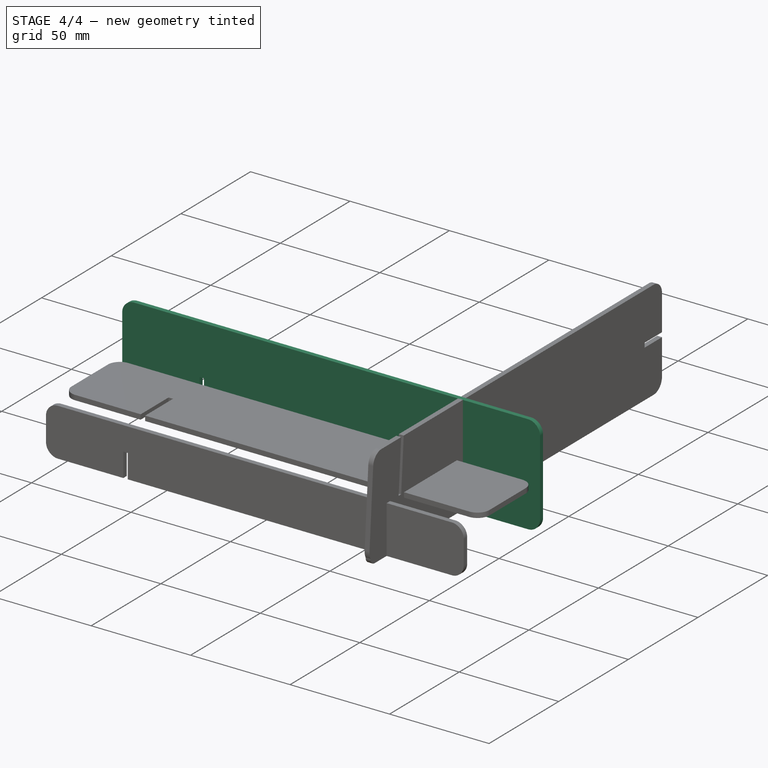
[diagram: stage 4 of 4 — iso view after this stage's code; geometry added in this stage tinted green]
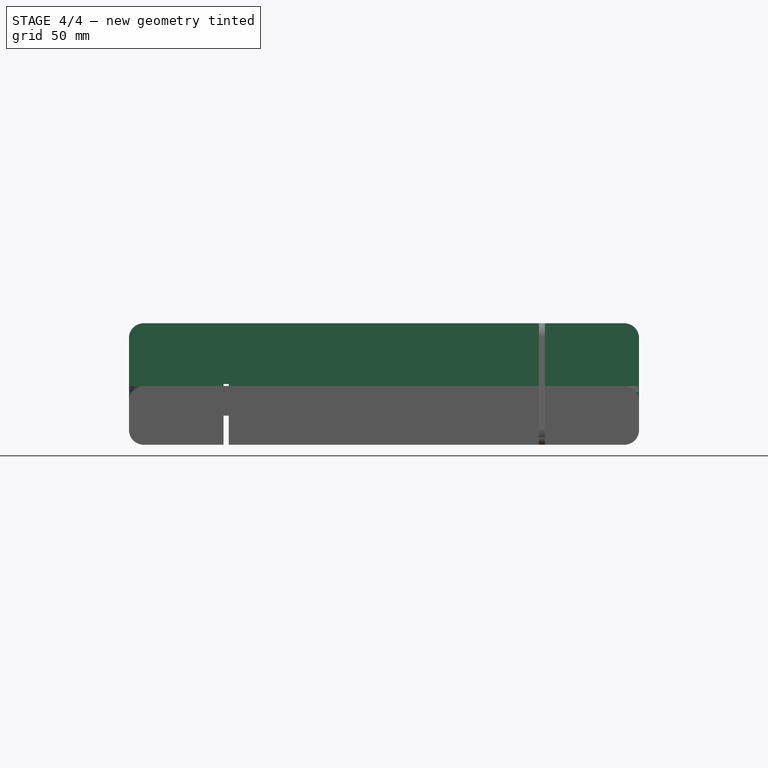
[diagram: stage 4 of 4 — front view after this stage's code; geometry added in this stage tinted green]
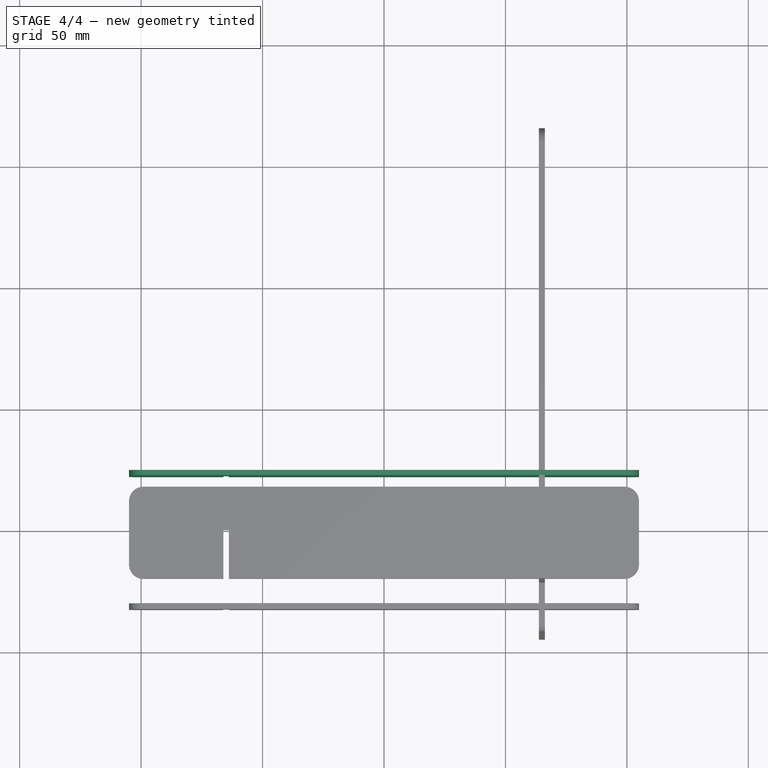
[diagram: stage 4 of 4 — top view after this stage's code; geometry added in this stage tinted green]
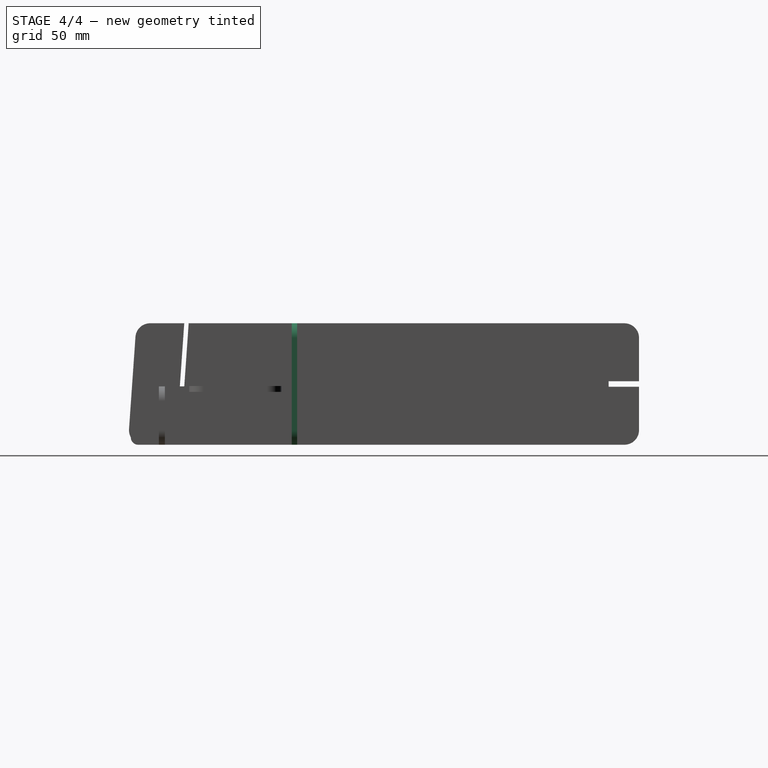
[diagram: stage 4 of 4 — right view after this stage's code; geometry added in this stage tinted green]
FEATURE [Sketcher::SketchObject] Sketch001
  ArcFitTolerance = 1e-06
  AttachmentSupport = -> [Pad]
  FullyConstrained = true
  MakeInternals = false
  MapMode = 5
  Placement = pos=(0,-24.2408,1.69508) rot=(1,0,0;1.50098rad)
  sketch-geometry (13):
    g0: Circle CenterX=0 CenterY=125 CenterZ=0 NormalX=0 NormalY=0 NormalZ=-1 AngleXU=0 Radius=0.2
    g1: ArcOfCircle CenterX=0 CenterY=125 CenterZ=0 NormalX=0 NormalY=0 NormalZ=1 AngleXU=0 Radius=5 StartAngle=0.174533 EndAngle=1.5708
    g2: ArcOfCircle CenterX=0 CenterY=125 CenterZ=0 NormalX=0 NormalY=0 NormalZ=1 AngleXU=0 Radius=5 StartAngle=1.74533 EndAngle=3.14159
    g3: ArcOfCircle CenterX=0 CenterY=125 CenterZ=0 NormalX=0 NormalY=0 NormalZ=1 AngleXU=0 Radius=5 StartAngle=3.31613 EndAngle=4.71239
    g4: ArcOfCircle CenterX=0 CenterY=125 CenterZ=0 NormalX=0 NormalY=0 NormalZ=1 AngleXU=0 Radius=5 StartAngle=4.88692 EndAngle=6.28319
    g5: LineSegment [constr] StartX=-9e-16 StartY=130 StartZ=0 EndX=-9e-16 EndY=120 EndZ=0
    g6: LineSegment [constr] StartX=-0.868241 StartY=129.924 StartZ=0 EndX=0.868241 EndY=120.076 EndZ=0
    g7: LineSegment [constr] StartX=-5 StartY=125 StartZ=0 EndX=5 EndY=125 EndZ=0
    g8: LineSegment [constr] StartX=-4.92404 StartY=124.132 StartZ=0 EndX=4.92404 EndY=125.868 EndZ=0
    g9: LineSegment [constr] StartX=-0.868241 StartY=129.924 StartZ=0 EndX=-9e-16 EndY=130 EndZ=0
    g10: LineSegment [constr] StartX=4.92404 StartY=125.868 StartZ=0 EndX=5 EndY=125 EndZ=0
    g11: LineSegment [constr] StartX=0.868241 StartY=120.076 StartZ=0 EndX=-9e-16 EndY=120 EndZ=0
    g12: LineSegment [constr] StartX=-4.92404 StartY=124.132 StartZ=0 EndX=-5 EndY=125 EndZ=0
  constraints (35):
    c: Equal(g4,g3)
    c: Equal(g3,g2)
    c: Equal(g2,g1)
    c: Radius(g1) = 5
    c: Coincident(g2,g1)
    c: Coincident(g2,g3)
    c: Coincident(g2,g4)
    c: Coincident(g2,g0)
    c: PointOnObject(g0,g-2)
    c: Coincident(g5,g1)
    c: Coincident(g5,g3)
    c: PointOnObject(g0,g5)
    c: Coincident(g6,g2)
    c: Coincident(g6,g4)
    c: PointOnObject(g0,g6)
    c: Coincident(g7,g2)
    c: Coincident(g7,g4)
    c: PointOnObject(g0,g7)
    c: Coincident(g8,g3)
    c: Coincident(g8,g1)
    c: PointOnObject(g0,g8)
    c: Diameter(g0) = 0.4
    c: Vertical(g5)
    c: Horizontal(g7)
    c: Coincident(g9,g2)
    c: Coincident(g9,g1)
    c: Coincident(g10,g1)
    c: Coincident(g10,g4)
    c: Coincident(g11,g4)
    c: Coincident(g11,g3)
    c: Coincident(g12,g3)
    c: Coincident(g12,g2)
    c: Equal(g9,g10)
    c: Angle(g5,g6) = 0.174533
    c: DistanceY(g-1,g0) = 125
FEATURE [PartDesign::Body] Body
  AllowCompound = false
  Group = -> [Sketch,Sketch001,Pad,DatumPlane]
  Origin = -> Origin
  Tip = -> Pad
FEATURE [PartDesign::SubShapeBinder] Binder
  BindCopyOnChange = 0
  BindMode = 0
  ClaimChildren = false
  Context = -> Body001 [Binder.]
  Fuse = false
  MakeFace = true
  OffsetFill = false
  OffsetIntersection = false
  OffsetJoinType = 0
  OffsetOpenResult = false
  PartialLoad = false
  Refine = true
  Relative = true
  Support = -> [Body]
  _Version = 2
FEATURE [Sketcher::SketchObject] Sketch002
  ArcFitTolerance = 1e-06
  AttachmentOffset = pos=(0,0,65) rot=(0,0,1;0rad)
  AttachmentSupport = -> [YZ_Plane001]
  ExternalGeometry = -> [Binder]
  FullyConstrained = true
  MakeInternals = false
  MapMode = 5
  Placement = pos=(65,0,0) rot=(0.57735,0.57735,0.57735;2.0944rad)
  sketch-geometry (22):
    g0: LineSegment StartX=22.2585 StartY=30 StartZ=0 EndX=2.0978 EndY=30 EndZ=0
    g1: LineSegment StartX=2.0978 StartY=30 StartZ=0 EndX=0 EndY=0 EndZ=0
    g2: LineSegment StartX=0 StartY=0 StartZ=0 EndX=-2.10513 EndY=0 EndZ=0
    g3: LineSegment StartX=-2.10513 StartY=0 StartZ=0 EndX=-0.00732363 EndY=30 EndZ=0
    g4: LineSegment StartX=-0.00732363 StartY=30 StartZ=0 EndX=-19.4122 EndY=30 EndZ=0
    g5: ArcOfCircle CenterX=-19.4122 CenterY=24 CenterZ=0 NormalX=0 NormalY=0 NormalZ=1 AngleXU=0 Radius=6 StartAngle=1.5708 EndAngle=3.07178
    g6: LineSegment StartX=-27.7415 StartY=-9.1 StartZ=0 EndX=-25.3976 EndY=24.4185 EndZ=0
    g7: LineSegment StartX=-2.74146 StartY=-9.1 StartZ=0 EndX=-27.7415 EndY=-9.1 EndZ=0
    g8: LineSegment StartX=-2.74146 StartY=-11 StartZ=0 EndX=-2.74146 EndY=-9.1 EndZ=0
    g9: LineSegment StartX=-27.8743 StartY=-11 StartZ=0 EndX=-2.74146 EndY=-11 EndZ=0
    g10: LineSegment StartX=-27.8743 StartY=-11 StartZ=0 EndX=-28.2793 EndY=-16.7907 EndZ=0
    g11: ArcOfCircle CenterX=-25.2866 CenterY=-17 CenterZ=0 NormalX=0 NormalY=0 NormalZ=1 AngleXU=0 Radius=3 StartAngle=3.07178 EndAngle=4.71239
    g12: LineSegment StartX=-25.2866 StartY=-20 StartZ=0 EndX=32.3707 EndY=-20 EndZ=0
    g13: ArcOfCircle CenterX=32.3707 CenterY=-17 CenterZ=0 NormalX=0 NormalY=0 NormalZ=1 AngleXU=0 Radius=3 StartAngle=4.71239 EndAngle=6.28319
    g14: LineSegment StartX=35.3707 StartY=24 StartZ=0 EndX=35.3707 EndY=-17 EndZ=0
    g15: ArcOfCircle CenterX=29.3707 CenterY=24 CenterZ=0 NormalX=0 NormalY=0 NormalZ=1 AngleXU=0 Radius=6 StartAngle=2e-16 EndAngle=1.5708
    g16: LineSegment StartX=24.1585 StartY=30 StartZ=0 EndX=29.3707 EndY=30 EndZ=0
    g17: LineSegment StartX=24.1585 StartY=5 StartZ=0 EndX=24.1585 EndY=30 EndZ=0
    g18: LineSegment StartX=22.2585 StartY=5 StartZ=0 EndX=24.1585 EndY=5 EndZ=0
    g19: LineSegment StartX=22.2585 StartY=30 StartZ=0 EndX=22.2585 EndY=5 EndZ=0
    g20: LineSegment [constr] StartX=-27.7415 StartY=-9.1 StartZ=0 EndX=-27.8743 EndY=-11 EndZ=0
    g21: LineSegment [constr] StartX=-2.10513 StartY=0 StartZ=0 EndX=-2.74146 EndY=-9.1 EndZ=0
  constraints (59):
    c: Horizontal(g12)
    c: Vertical(g14)
    c: Horizontal(g16)
    c: Vertical(g17)
    c: Horizontal(g18)
    c: Vertical(g19)
    c: Horizontal(g0)
    c: Horizontal(g4)
    c: Horizontal(g7)
    c: Vertical(g8)
    c: Horizontal(g9)
    c: Equal(g11,g13)
    c: Equal(g5,g15)
    c: Radius(g5) = 6
    c: Radius(g11) = 3
    c: Equal(g8,g18)
    c: Equal(g19,g7)
    c: DistanceX(g10,g13) = 63.65
    c: DistanceY(g12,g15) = 50
    c: DistanceX(g6,g18) = 50
    c: DistanceY(g19,g19) = 25
    c: Parallel(g1,g-3)
    c: Parallel(g3,g1)
    c: Parallel(g6,g-3)
    c: Coincident(g1,g2)
    c: Coincident(g1,g-1)
    c: Distance(g1,g3) = 2.1
    c: Distance(g18,g18) = 1.9
    c: Coincident(g7,g8)
    c: Coincident(g8,g9)
    c: Coincident(g6,g7)
    c: Coincident(g9,g10)
    c: Coincident(g16,g17)
    c: Coincident(g17,g18)
    c: Coincident(g18,g19)
    c: Coincident(g0,g19)
    c: Coincident(g0,g1)
    c: Coincident(g3,g4)
    c: Coincident(g2,g3)
    c: Tangent(g12,g13) = -1.5708
    c: Tangent(g13,g14) = 1.5708
    c: Tangent(g14,g15) = 1.5708
    c: Tangent(g15,g16) = 1.5708
    c: Tangent(g4,g5) = -1.5708
    c: Tangent(g5,g6) = 1.5708
    c: Tangent(g10,g11) = -1.5708
    c: Tangent(g11,g12) = -1.5708
    c: Equal(g19,g17)
    c: Parallel(g10,g6)
    c: Coincident(g20,g6)
    c: Coincident(g20,g9)
    c: Parallel(g20,g6)
    c: Equal(g3,g1)
    c: Horizontal(g2)
    c: Coincident(g21,g2)
    c: Coincident(g21,g7)
    c: Parallel(g21,g3)
    c: Distance(g8,g12) = 9
    c: DistanceY(g3,g3) = 30
FEATURE [PartDesign::Pad] Pad001
  Direction = (1,0,0)
  Length = 2.2
  Length2 = 10
  Midplane = true
  Placement = pos=(0,0,0) rot=(1,1,1;2.0944rad)
  Profile = -> Sketch002
  ReferenceAxis = -> Sketch002 [N_Axis]
  Refine = true
  Suppressed = false
  Type = 0
FEATURE [PartDesign::Body] Body001
  AllowCompound = false
  Group = -> [Sketch002,Binder,Pad001]
  Origin = -> Origin001
  Tip = -> Pad001
FEATURE [PartDesign::FeatureBase] Clone
  BaseFeature = -> Body001
  Suppressed = false
FEATURE [PartDesign::Body] Body002
  AllowCompound = false
  Group = -> [Clone]
  Origin = -> Origin002
  Placement = pos=(-130,0,0) rot=(0,0,1;0rad)
  Tip = -> Clone
FEATURE [PartDesign::SubShapeBinder] Binder001
  BindCopyOnChange = 0
  BindMode = 0
  ClaimChildren = false
  Context = -> Body003 [Binder001.]
  Fuse = false
  MakeFace = true
  OffsetFill = false
  OffsetIntersection = false
  OffsetJoinType = 0
  OffsetOpenResult = false
  PartialLoad = false
  Refine = true
  Relative = true
  Support = -> [Body002]
  _Version = 2
FEATURE [PartDesign::SubShapeBinder] Binder002
  BindCopyOnChange = 0
  BindMode = 0
  ClaimChildren = false
  Context = -> Body003 [Binder002.]
  Fuse = false
  MakeFace = true
  OffsetFill = false
  OffsetIntersection = false
  OffsetJoinType = 0
  OffsetOpenResult = false
  PartialLoad = false
  Refine = true
  Relative = true
  Support = -> [Body001]
  _Version = 2
FEATURE [Sketcher::SketchObject] Sketch003
  ArcFitTolerance = 1e-06
  AttachmentOffset = pos=(-142.3,0,0) rot=(0,0,1;0rad)
  AttachmentSupport = -> [Binder002]
  FullyConstrained = false
  MakeInternals = false
  MapMode = 5
  Placement = pos=(142.3,22.2585,-2.4e-15) rot=(0,0.707107,0.707107;3.14159rad)
  sketch-geometry (16):
    g0: LineSegment StartX=77.65 StartY=-20 StartZ=0 EndX=77.65 EndY=5 EndZ=0
    g1: LineSegment StartX=77.65 StartY=5 StartZ=0 EndX=79.95 EndY=5 EndZ=0
    g2: LineSegment StartX=79.95 StartY=5 StartZ=0 EndX=79.95 EndY=-20 EndZ=0
    g3: LineSegment StartX=79.95 StartY=-20 StartZ=0 EndX=204.65 EndY=-20 EndZ=0
    g4: LineSegment StartX=204.65 StartY=-20 StartZ=0 EndX=204.65 EndY=5 EndZ=0
    g5: LineSegment StartX=204.65 StartY=5 StartZ=0 EndX=206.95 EndY=5 EndZ=0
    g6: LineSegment StartX=206.95 StartY=5 StartZ=0 EndX=206.95 EndY=-20 EndZ=0
    g7: LineSegment StartX=206.95 StartY=-20 StartZ=0 EndX=241.3 EndY=-20 EndZ=0
    g8: ArcOfCircle CenterX=241.3 CenterY=-14 CenterZ=0 NormalX=0 NormalY=0 NormalZ=1 AngleXU=0 Radius=6 StartAngle=4.71239 EndAngle=6.28319
    g9: LineSegment StartX=247.3 StartY=-14 StartZ=0 EndX=247.3 EndY=24 EndZ=0
    g10: ArcOfCircle CenterX=241.3 CenterY=24 CenterZ=0 NormalX=0 NormalY=0 NormalZ=1 AngleXU=0 Radius=6 StartAngle=0 EndAngle=1.5708
    g11: LineSegment StartX=241.3 StartY=30 StartZ=0 EndX=43.3 EndY=30 EndZ=0
    g12: ArcOfCircle CenterX=43.3 CenterY=24 CenterZ=0 NormalX=0 NormalY=0 NormalZ=1 AngleXU=0 Radius=6 StartAngle=1.5708 EndAngle=3.14159
    g13: LineSegment StartX=37.3 StartY=24 StartZ=0 EndX=37.3 EndY=-14 EndZ=0
    g14: ArcOfCircle CenterX=43.3 CenterY=-14 CenterZ=0 NormalX=0 NormalY=0 NormalZ=1 AngleXU=0 Radius=6 StartAngle=3.14159 EndAngle=4.71239
    g15: LineSegment StartX=43.3 StartY=-20 StartZ=0 EndX=77.65 EndY=-20 EndZ=0
FEATURE [Sketcher::SketchObject] Sketch004
  ArcFitTolerance = 1e-06
  AttachmentSupport = -> [Binder002]
  ExternalGeometry = -> [Binder001,Binder002]
  FullyConstrained = true
  MakeInternals = false
  MapMode = 5
  Placement = pos=(4.9e-15,22.2585,-2.4e-15) rot=(0,0.707107,0.707107;3.14159rad)
  sketch-geometry (18):
    g0: LineSegment StartX=-99 StartY=-20 StartZ=0 EndX=-66.1 EndY=-20 EndZ=0
    g1: LineSegment StartX=105 StartY=-14 StartZ=0 EndX=105 EndY=24 EndZ=0
    g2: LineSegment StartX=99 StartY=30 StartZ=0 EndX=-99 EndY=30 EndZ=0
    g3: LineSegment StartX=-105 StartY=24 StartZ=0 EndX=-105 EndY=-14 EndZ=0
    g4: ArcOfCircle CenterX=-99 CenterY=-14 CenterZ=0 NormalX=0 NormalY=0 NormalZ=1 AngleXU=0 Radius=6 StartAngle=3.14159 EndAngle=4.71239
    g5: ArcOfCircle CenterX=99 CenterY=-14 CenterZ=0 NormalX=0 NormalY=0 NormalZ=1 AngleXU=0 Radius=6 StartAngle=4.71239 EndAngle=6.28319
    g6: ArcOfCircle CenterX=99 CenterY=24 CenterZ=0 NormalX=0 NormalY=0 NormalZ=1 AngleXU=0 Radius=6 StartAngle=0 EndAngle=1.5708
    g7: ArcOfCircle CenterX=-99 CenterY=24 CenterZ=0 NormalX=0 NormalY=0 NormalZ=1 AngleXU=0 Radius=6 StartAngle=1.5708 EndAngle=3.14159
    g8: GeomPoint [constr] X=105 Y=30 Z=0
    g9: GeomPoint [constr] X=0 Y=5 Z=0
    g10: LineSegment StartX=-66.1 StartY=5 StartZ=0 EndX=-66.1 EndY=-20 EndZ=0
    g11: LineSegment StartX=-63.9 StartY=-20 StartZ=0 EndX=-63.9 EndY=5 EndZ=0
    g12: LineSegment StartX=-63.9 StartY=5 StartZ=0 EndX=-66.1 EndY=5 EndZ=0
    g13: LineSegment StartX=66.1 StartY=5 StartZ=0 EndX=63.9 EndY=5 EndZ=0
    g14: LineSegment StartX=63.9 StartY=5 StartZ=0 EndX=63.9 EndY=-20 EndZ=0
    g15: LineSegment StartX=66.1 StartY=-20 StartZ=0 EndX=66.1 EndY=5 EndZ=0
    g16: LineSegment StartX=66.1 StartY=-20 StartZ=0 EndX=99 EndY=-20 EndZ=0
    g17: LineSegment StartX=-63.9 StartY=-20 StartZ=0 EndX=63.9 EndY=-20 EndZ=0
  constraints (41):
    c: Tangent(g0,g4) = -1.5708
    c: Tangent(g1,g5) = -1.5708
    c: Tangent(g1,g6) = -1.5708
    c: Tangent(g2,g6) = -1.5708
    c: Tangent(g2,g7) = -1.5708
    c: Tangent(g3,g7) = -1.5708
    c: Tangent(g3,g4) = -1.5708
    c: Horizontal(g0)
    c: Horizontal(g2)
    c: Vertical(g1)
    c: Vertical(g3)
    c: Equal(g4,g5)
    c: Equal(g5,g6)
    c: Equal(g6,g7)
    c: Symmetric(g2,g0,g9)
    c: PointOnObject(g8,g1)
    c: PointOnObject(g8,g2)
    c: Distance(g1,g3) = 210
    c: Distance(g0,g2) = 50
    c: Radius(g5) = 6
    c: PointOnObject(g9,g-2)
    c: Coincident(g11,g12)
    c: Coincident(g12,g10)
    c: Vertical(g11)
    c: Horizontal(g12)
    c: Coincident(g10,g-6)
    c: Coincident(g13,g14)
    c: Coincident(g15,g13)
    c: Horizontal(g13)
    c: Vertical(g14)
    c: Coincident(g13,g-5)
    c: Coincident(g10,g-4)
    c: Coincident(g11,g-4)
    c: Coincident(g15,g-3)
    c: Coincident(g14,g-3)
    c: Tangent(g16,g5) = -1.5708
    c: Coincident(g14,g17)
    c: Coincident(g11,g17)
    c: Coincident(g0,g10)
    c: Coincident(g15,g16)
    c: Horizontal(g16)
FEATURE [PartDesign::Pad] Pad002
  Direction = (0,1,-2e-16)
  Length = 2.2
  Length2 = 10
  Profile = -> Sketch004
  ReferenceAxis = -> Sketch004 [N_Axis]
  Refine = true
  Suppressed = false
  Type = 0
FEATURE [PartDesign::Body] Body003
  AllowCompound = false
  Group = -> [Sketch003,Binder001,Binder002,Sketch004,Pad002]
  Origin = -> Origin003
  Tip = -> Pad002
FEATURE [PartDesign::FeatureBase] Clone001
  BaseFeature = -> Body003
  Suppressed = false
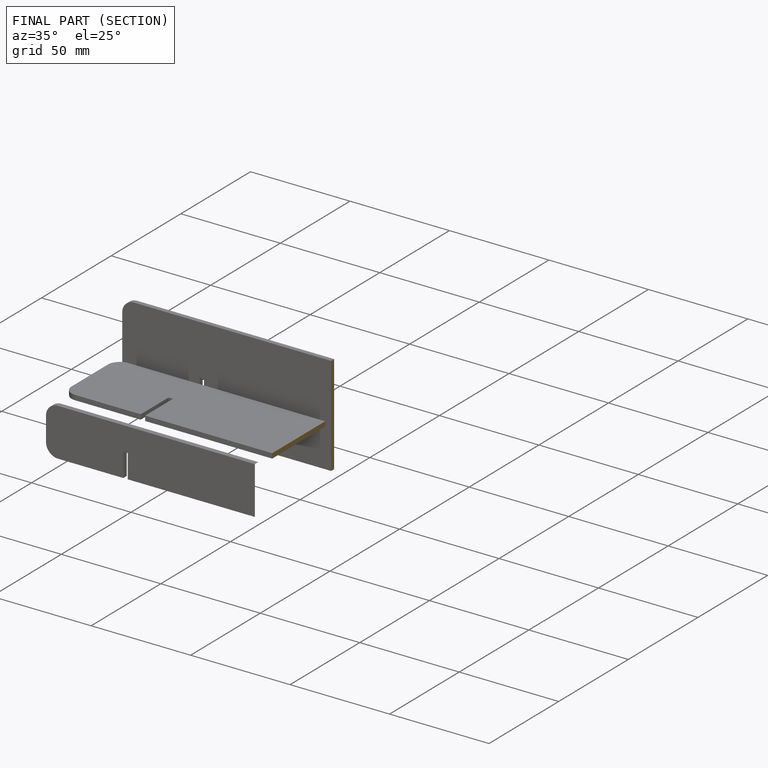
[diagram: finished part — half-section view (interior)]
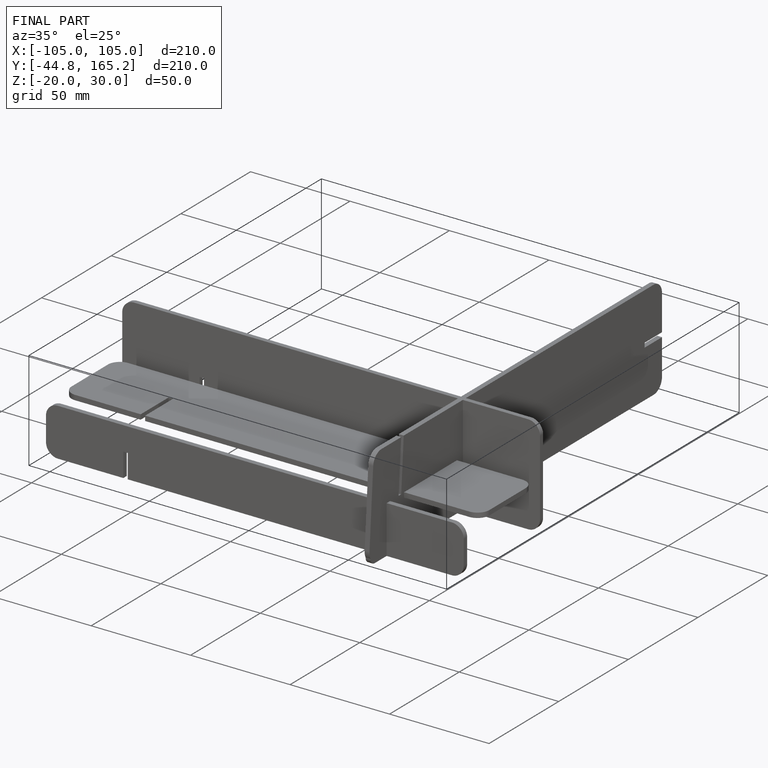
[diagram: finished part — iso view with bounding-box wireframe]
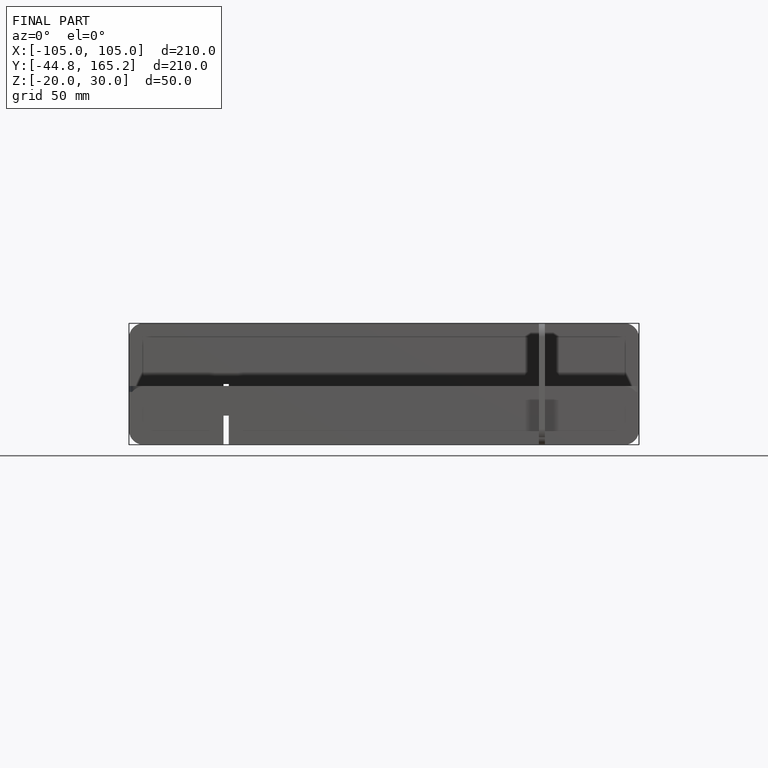
[diagram: finished part — front view with bounding-box wireframe]
